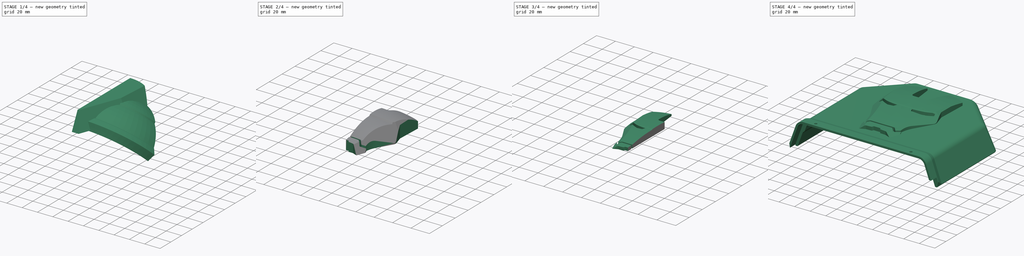
[diagram: build sequence overview — one tinted view per stage of 4, left to right]
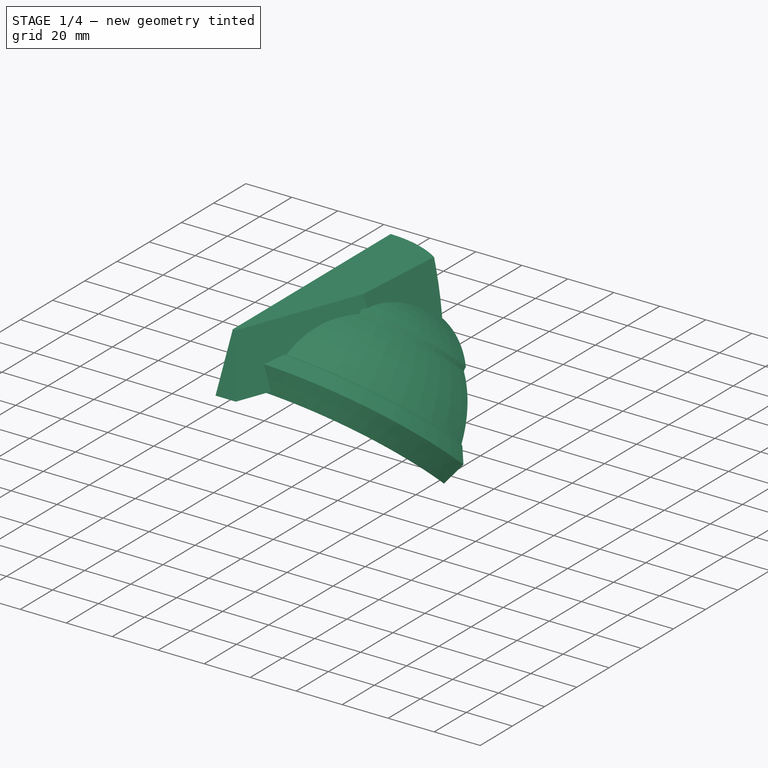
[diagram: stage 1 of 4 — iso view after this stage's code; geometry added in this stage tinted green]
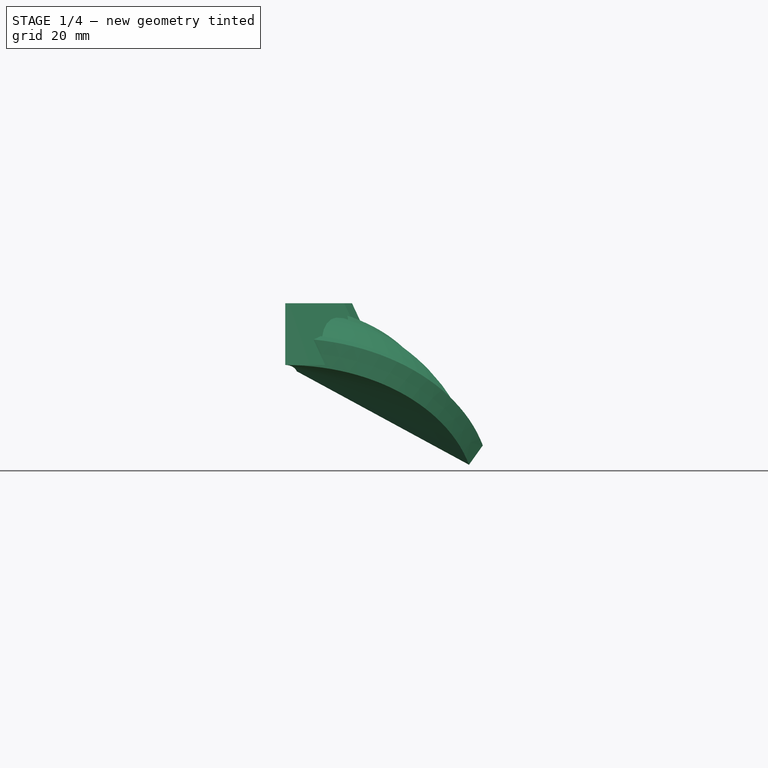
[diagram: stage 1 of 4 — front view after this stage's code; geometry added in this stage tinted green]
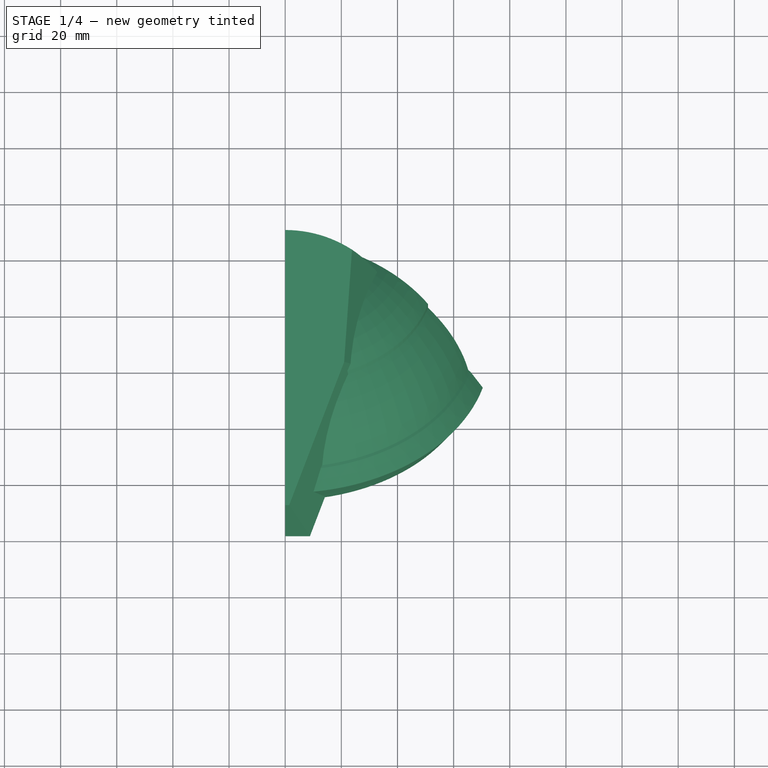
[diagram: stage 1 of 4 — top view after this stage's code; geometry added in this stage tinted green]
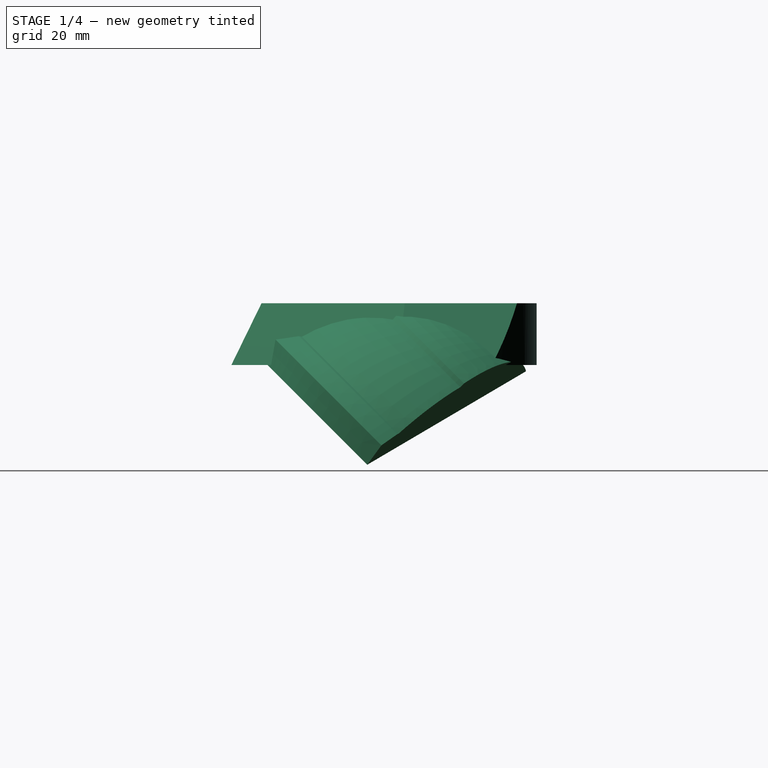
[diagram: stage 1 of 4 — right view after this stage's code; geometry added in this stage tinted green]
FCSTD DOCUMENT  (FreeCAD 0.16RUnknown)
Label: IronMan
License: All rights reserved
LicenseURL: http://en.wikipedia.org/wiki/All_rights_reserved
objects: Sketcher::SketchObject×4, App::DocumentObjectGroup×3, Part::FeaturePython×3, PartDesign::Pad×3, Image::ImagePlane×2, Part::MultiCommon×2, Spreadsheet::Sheet×1, Part::Revolution×1, PartDesign::Draft×1, Part::Cut×1, Part::Mirroring×1, Part::MultiFuse×1
note: 20 computed .brp shape members not serialized (recipe doc carries the construction recipe); baked Part::Feature solids carry a one-line shape summary decoded from their .brp

FEATURE [Image::ImagePlane] ImagePlane001  label="Profile"
  Placement = pos=(0,0,4) rot=(0,-1,0;1.5708rad)
  XSize = 36
  YSize = 100
FEATURE [App::DocumentObjectGroup] Group002  label="Reference"
  Group = -> [ImagePlane,ImagePlane001,UpperFront_step1_01]
FEATURE [Sketcher::SketchObject] Sketch002  label="ProfileSketch"
  Placement = pos=(0,0,0) rot=(0.57735,-0.57735,-0.57735;2.0944rad)
  sketch-geometry (7):
    g0: ArcOfCircle CenterX=-2.97286 CenterY=-28.5793 CenterZ=0 NormalX=0 NormalY=0 NormalZ=1 Radius=50 StartAngle=1.44097 EndAngle=2.53316
    g1: LineSegment StartX=3.5 StartY=21 StartZ=0 EndX=4.8 EndY=19.7 EndZ=0
    g2: ArcOfCircle CenterX=4.22811 CenterY=-37.2971 CenterZ=0 NormalX=0 NormalY=0 NormalZ=1 Radius=57 StartAngle=1.01091 EndAngle=1.56076
    g3: LineSegment StartX=34.5 StartY=11 StartZ=0 EndX=35.5 EndY=11.1228 EndZ=0
    g4: LineSegment StartX=35.5 StartY=11.1228 StartZ=0 EndX=43.5 EndY=9.56774 EndZ=0
    g5: LineSegment StartX=43.5 StartY=9.56774 StartZ=0 EndX=45.8855 EndY=0 EndZ=0
    g6: LineSegment StartX=45.8855 StartY=0 StartZ=0 EndX=-44 EndY=0 EndZ=0
  constraints (23):
    c: Coincident(g3,g4)
    c: Coincident(g4,g5)
    c: Coincident(g5,g6)
    c: Coincident(g0,g6)
    c: Horizontal(g6)
    c: PointOnObject(g0,g-1)
    c: DistanceX(g0) = -44
    c: DistanceX(g0) = 3.5
    c: DistanceY(g0) = 21
    c: Radius(g0) = 50
    c: Coincident(g0,g1)
    c: Angle(g1) = -0.785398
    c: Coincident(g2,g1)
    c: DistanceY(g1,g0) = 1.3
    c: DistanceY(g2) = 11
    c: DistanceX(g2) = 34.5
    c: Coincident(g2,g3)
    c: DistanceX(g2,g3) = 1
    c: Angle(g3) = 0.122173
    c: Angle(g3,g4) = 2.82743
    c: DistanceX(g3,g4) = 8
    c: Angle(g5,g6) = 1.32645
    c: Radius(g2) = 57
FEATURE [Part::Revolution] Revolve  label="ProfileApprox"
  Angle = 75
  Axis = (0,1,1)
  Base = (0,0,-50)
  Solid = true
  Source = -> Sketch002
FEATURE [Sketcher::SketchObject] Sketch003  label="FrontGeometry"
  sketch-geometry (5):
    g0: LineSegment StartX=0 StartY=-48 StartZ=0 EndX=1.42293 EndY=-48 EndZ=0
    g1: LineSegment StartX=1.42293 StartY=-48 StartZ=0 EndX=21 EndY=3 EndZ=0
    g2: LineSegment StartX=21 StartY=3 StartZ=0 EndX=23.7977 EndY=43.009 EndZ=0
    g3: ArcOfCircle CenterX=0 CenterY=6 CenterZ=0 NormalX=0 NormalY=0 NormalZ=1 Radius=44 StartAngle=0.999341 EndAngle=1.5708
    g4: LineSegment StartX=0 StartY=50 StartZ=0 EndX=0 EndY=-48 EndZ=0
  constraints (16):
    c: Coincident(g0,g1)
    c: Coincident(g1,g2)
    c: Coincident(g0,g4)
    c: Coincident(g3,g4)
    c: Vertical(g4)
    c: PointOnObject(g3,g-2)
    c: PointOnObject(g3,g4)
    c: Coincident(g2,g3)
    c: DistanceY(g3) = 50
    c: DistanceY(g0) = -48
    c: Horizontal(g0)
    c: DistanceY(g1) = 3
    c: DistanceX(g1) = 21
    c: Angle(g2,g-1) = 1.64061
    c: Angle(g1) = 1.20428
    c: Radius(g3) = 44
FEATURE [PartDesign::Pad] Pad002  label="FrontGeometry001"
  Length = 22
  Length2 = 100
  Sketch = -> Sketch003
  Type = 0
FEATURE [PartDesign::Draft] Draft  label="FrontGeometryDraft"
  Angle = 26
  Base = -> Pad002 [Face2,Face3,Face1]
  NeutralPlane = -> Pad002 [Face7]
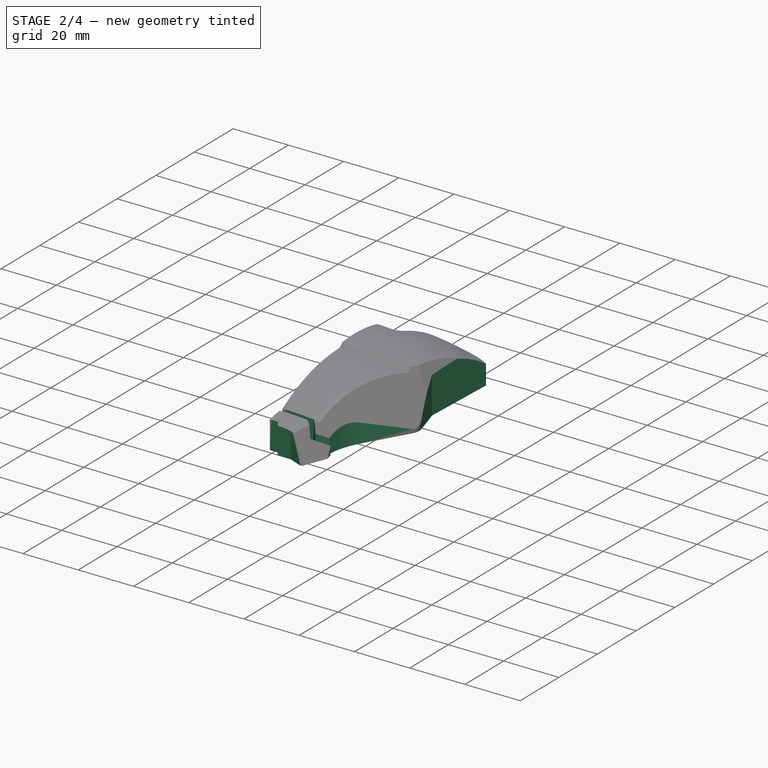
[diagram: stage 2 of 4 — iso view after this stage's code; geometry added in this stage tinted green]
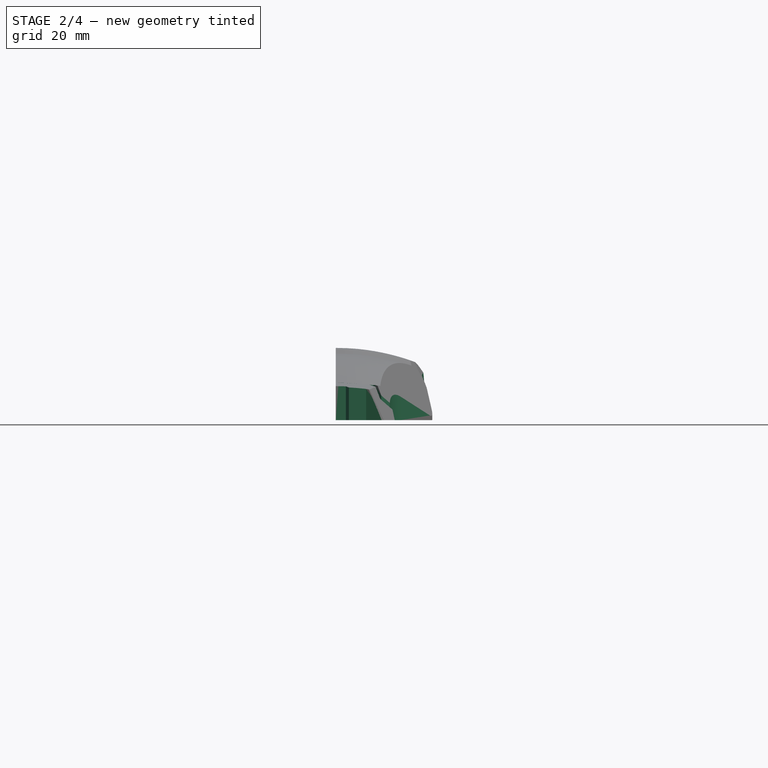
[diagram: stage 2 of 4 — front view after this stage's code; geometry added in this stage tinted green]
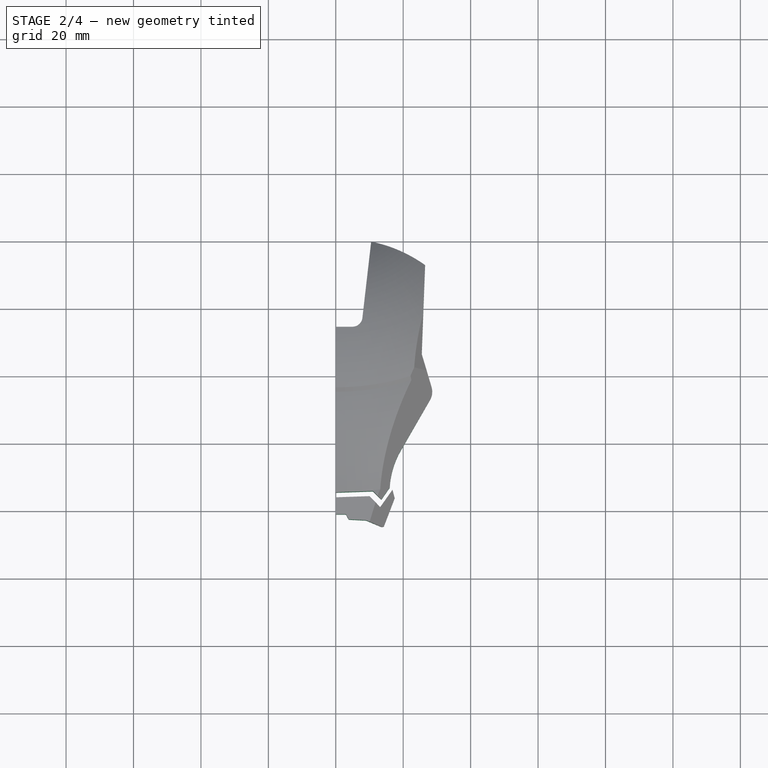
[diagram: stage 2 of 4 — top view after this stage's code; geometry added in this stage tinted green]
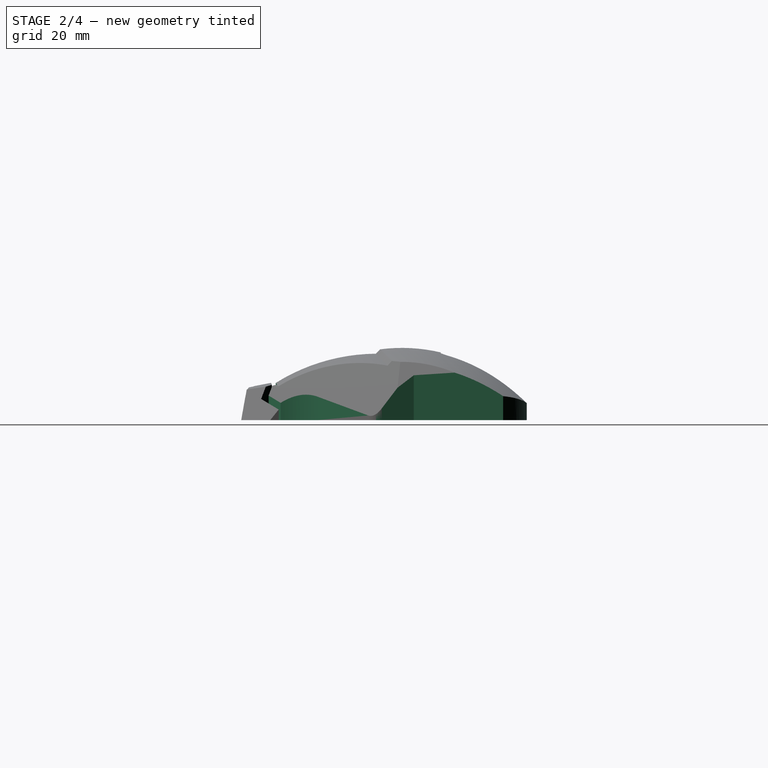
[diagram: stage 2 of 4 — right view after this stage's code; geometry added in this stage tinted green]
FEATURE [PartDesign::Pad] Pad001  label="MaskBorder001"
  Length = 50
  Length2 = 100
  Sketch = -> Sketch
  Type = 0
FEATURE [Part::MultiCommon] Common  label="GeometryCommon"
  Shapes = -> [Revolve,Draft]
FEATURE [Part::MultiCommon] Common001  label="MaskCommon"
  Shapes = -> [Pad001,Common]
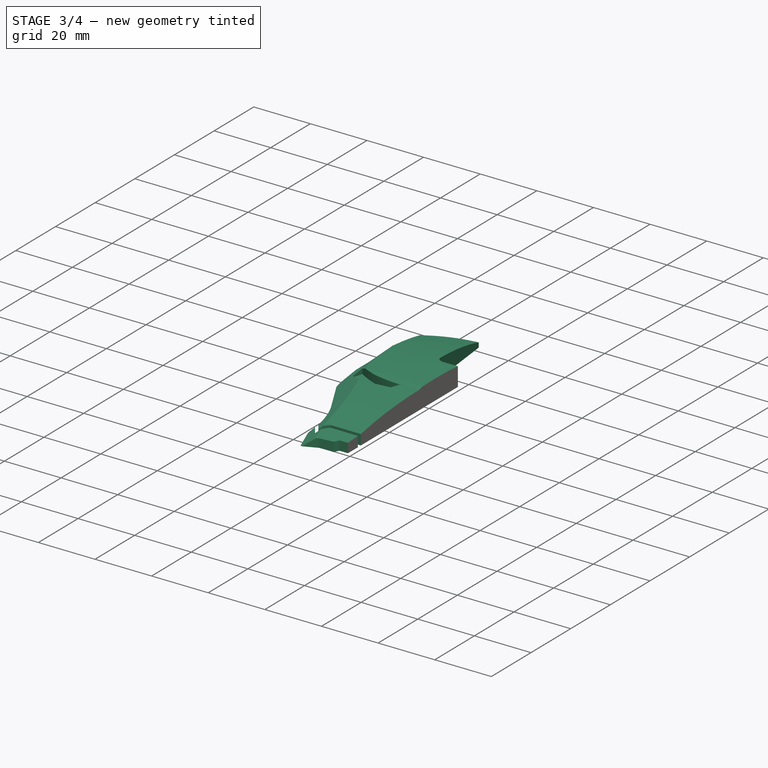
[diagram: stage 3 of 4 — iso view after this stage's code; geometry added in this stage tinted green]
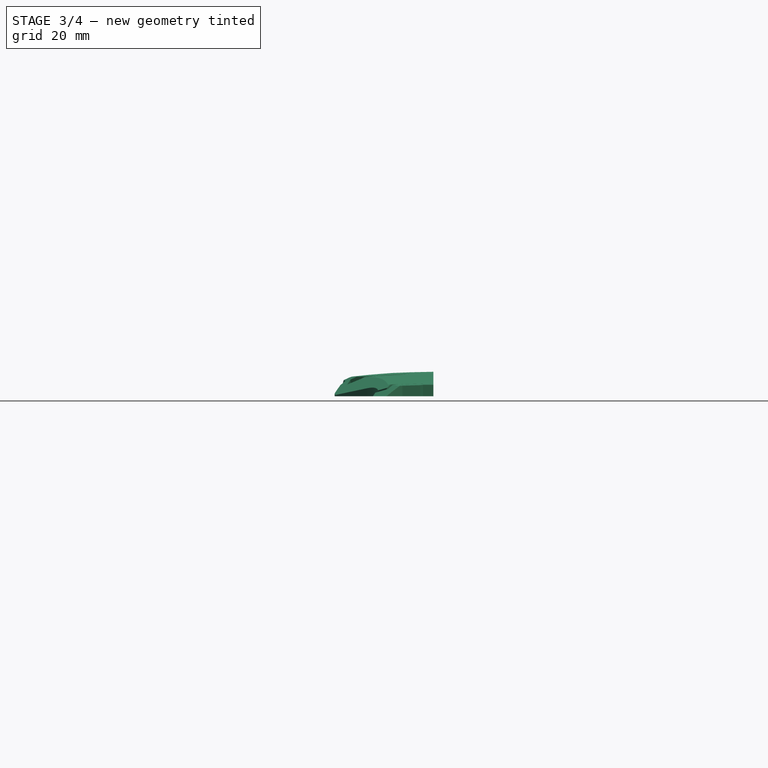
[diagram: stage 3 of 4 — front view after this stage's code; geometry added in this stage tinted green]
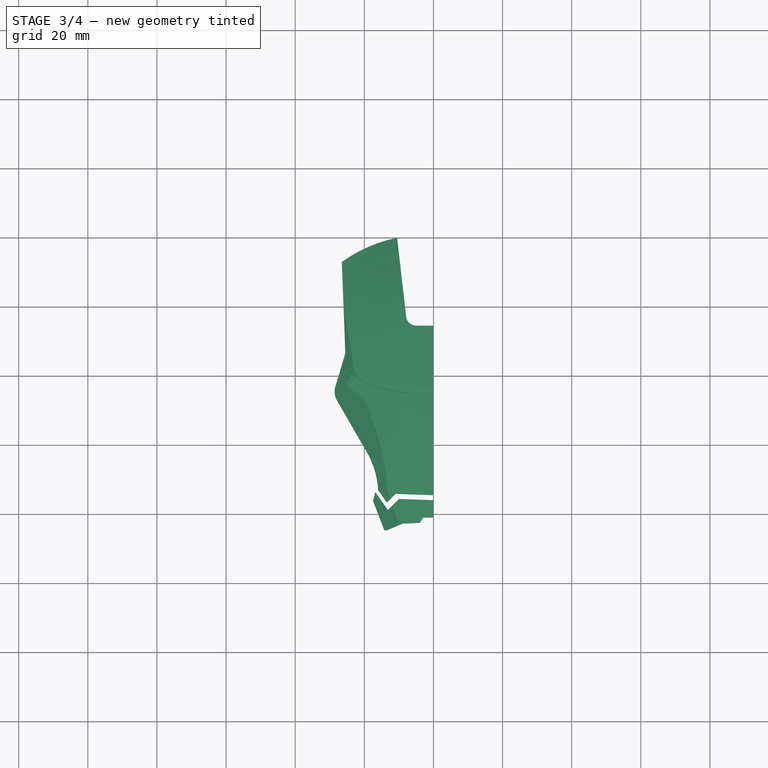
[diagram: stage 3 of 4 — top view after this stage's code; geometry added in this stage tinted green]
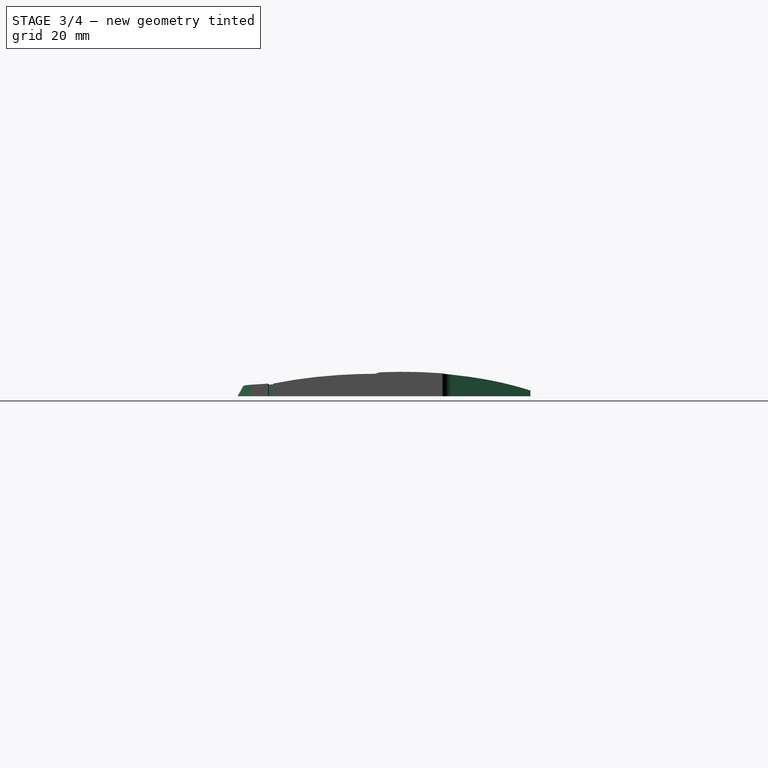
[diagram: stage 3 of 4 — right view after this stage's code; geometry added in this stage tinted green]
FEATURE [Sketcher::SketchObject] Sketch001  label="Eye"
  Placement = pos=(0,0,3) rot=(0,0,1;0rad)
  expr: Placement.Base.z = pars.EBThick
  sketch-geometry (6):
    g0: ArcOfCircle CenterX=3.91904 CenterY=32.8607 CenterZ=0 NormalX=0 NormalY=0 NormalZ=1 Radius=38 StartAngle=4.78828 EndAngle=5.26916
    g1: LineSegment StartX=6.8 StartY=-5.0299 StartZ=0 EndX=8 EndY=-8 EndZ=0
    g2: LineSegment StartX=8 StartY=-8 StartZ=0 EndX=16 EndY=-8 EndZ=0
    g3: LineSegment StartX=24 StartY=0.6 StartZ=0 EndX=24.9485 EndY=-2.7078 EndZ=0
    g4: LineSegment StartX=24.9485 StartY=-2.7078 StartZ=0 EndX=21.353 EndY=-5.94516 EndZ=0
    g5: ArcOfCircle CenterX=16 CenterY=0 CenterZ=0 NormalX=0 NormalY=0 NormalZ=1 Radius=8 StartAngle=4.71239 EndAngle=5.44543
  constraints (20):
    c: Coincident(g1,g2)
    c: Coincident(g3,g4)
    c: Coincident(g0,g1)
    c: Coincident(g0,g3)
    c: Coincident(g4,g5)
    c: Coincident(g2,g5)
    c: Tangent(g2,g5)
    c: Tangent(g5,g4)
    c: Horizontal(g2)
    c: Angle(g4,g2) = 2.40855
    c: DistanceX(g1) = 8
    c: DistanceY(g1) = -8
    c: Radius(g5) = 8
    c: DistanceX(g5) = 16
    c: Angle(g3,g4) = 2.02458
    c: Angle(g2,g1) = 1.95477
    c: DistanceX(g0) = 6.8
    c: DistanceX(g0) = 24
    c: DistanceY(g0) = 0.6
    c: Radius(g0) = 38
FEATURE [PartDesign::Pad] Pad  label="Eye001"
  Length = 25
  Length2 = 100
  Placement = pos=(0,0,3) rot=(0,0,1;0rad)
  Sketch = -> Sketch001
  Type = 0
FEATURE [Part::FeaturePython] Clone  label="Rescale"  # Draft clone (typed FeaturePython)
  Objects = -> [Common001]
  Scale = (1,1,0.33)
FEATURE [Part::Cut] Cut  label="HalfFace"
  Base = -> Clone
  Tool = -> Pad
FEATURE [Part::Mirroring] Part__Mirroring  label="HalfFace (Mirror #1)"
  Base = (0,0,0)
  Normal = (1,0,0)
  Source = -> Cut
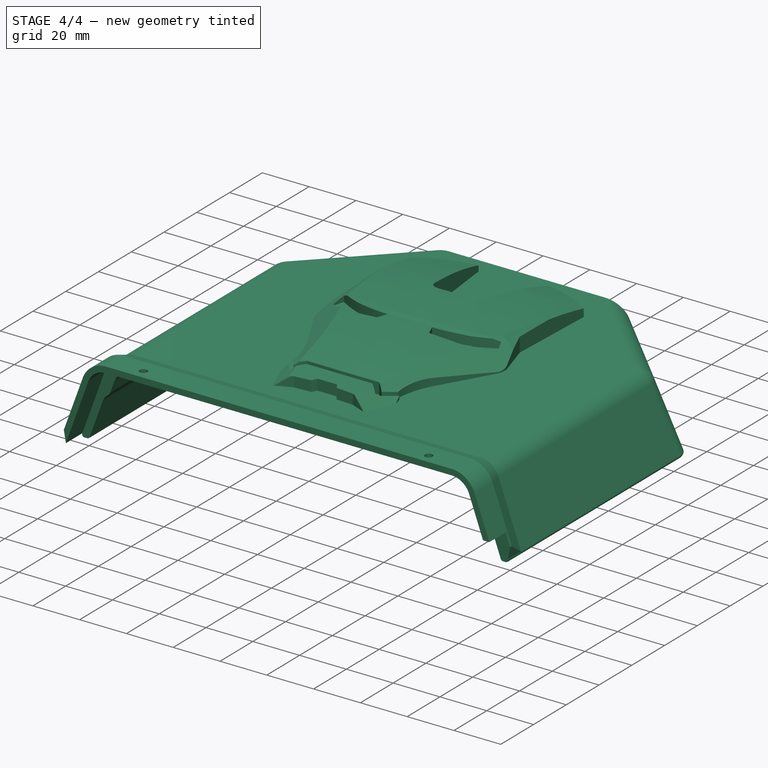
[diagram: stage 4 of 4 — iso view after this stage's code; geometry added in this stage tinted green]
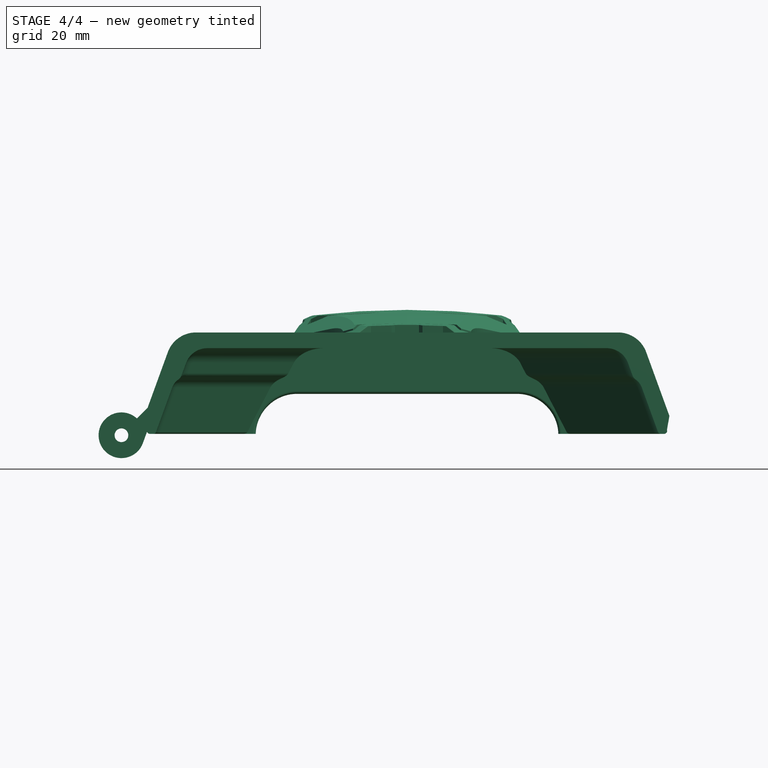
[diagram: stage 4 of 4 — front view after this stage's code; geometry added in this stage tinted green]
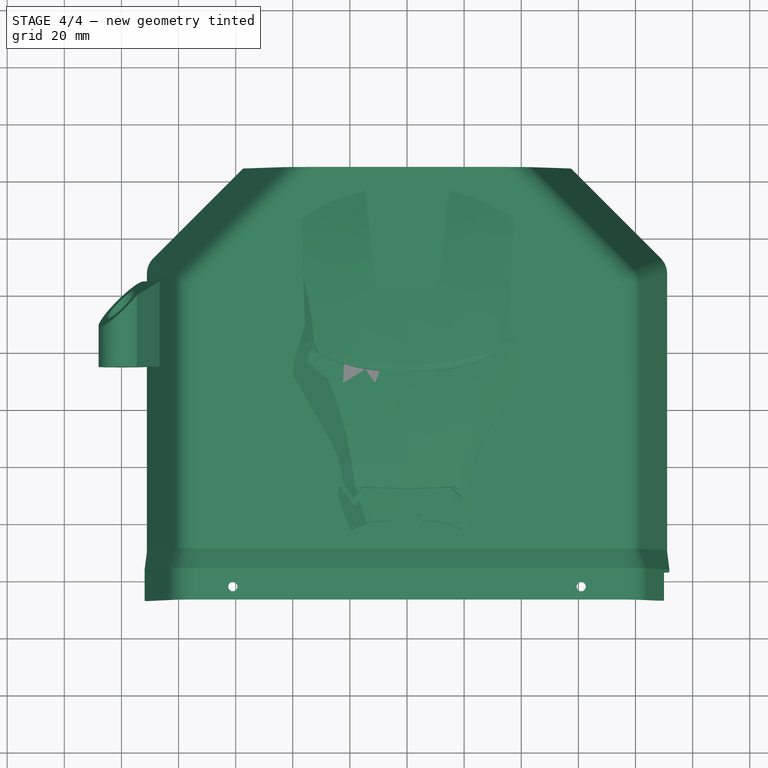
[diagram: stage 4 of 4 — top view after this stage's code; geometry added in this stage tinted green]
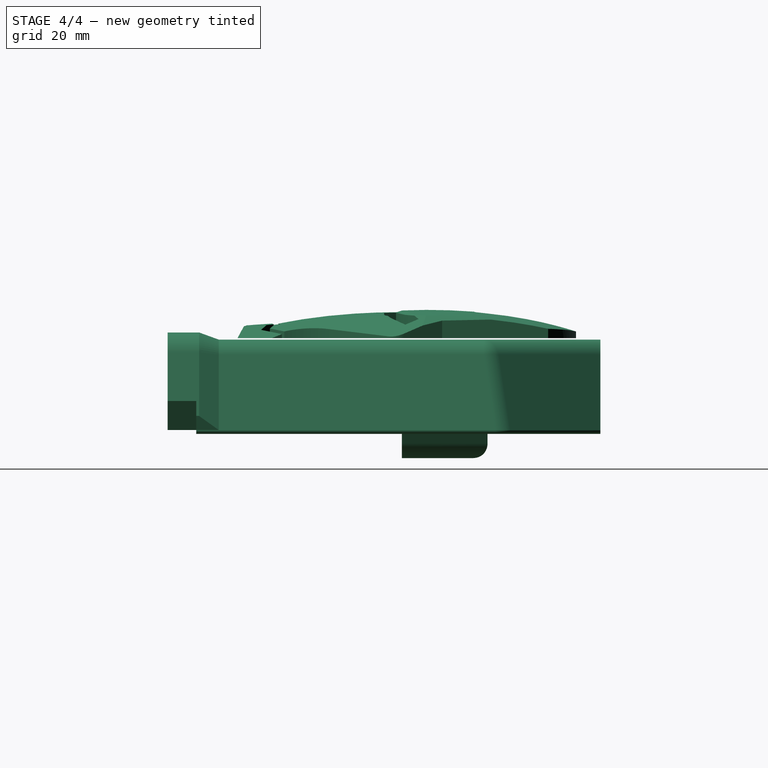
[diagram: stage 4 of 4 — right view after this stage's code; geometry added in this stage tinted green]
FEATURE [Spreadsheet::Sheet] Spreadsheet  label="pars"
  cells = A1=Bolts and Nuts; B1=Value; D1=Components; E1=Value; A2=Thread Tight Tolerance (Radius, ratio); B2(ThrTighRatio)=0.96; D2=Tight Cilinder Tolerances (Radius, mm); E2(CilTight)=0.1; A3=Thread Tight Tolerance (Radius, mm); B3(ThrTightmm)=0.1; D3=Loose Cilinder Tolerances (Radius, mm); E3(CilLoose)=0.1; A5=Nut Slot Width Clearance (mm); B5(NutWidthClearmm)=0.1; A6=Nut Slot Thickess Clearance (mm); B6(NutThickClearmm)=0.1; A13=Particular parameters; B13=Value; A14=Eye Bottom Thickness; B14(EBThick)=3; A15=Scale; B15(Scale)=1.4
FEATURE [App::DocumentObjectGroup] Group001  label="Component_src"
FEATURE [Image::ImagePlane] ImagePlane  label="Front"
  XSize = 60
  YSize = 100
FEATURE [Sketcher::SketchObject] Sketch  label="MaskBorder"
  sketch-geometry (24):
    g0: LineSegment StartX=0 StartY=14.5 StartZ=0 EndX=4.91704 EndY=14.5 EndZ=0
    g1: LineSegment StartX=7.89776 StartY=17.1604 StartZ=0 EndX=10.5 EndY=40 EndZ=0
    g2: LineSegment StartX=26.5 StartY=33 StartZ=0 EndX=25.5 EndY=6.5 EndZ=0
    g3: LineSegment StartX=25.5 StartY=6.5 StartZ=0 EndX=28.3909 EndY=-3.05159 EndZ=0
    g4: LineSegment StartX=27.9354 StartY=-7 StartZ=0 EndX=19.3076 EndY=-21.9437 EndZ=0
    g5: LineSegment StartX=0 StartY=-35.9545 StartZ=0 EndX=10 EndY=-35.6053 EndZ=0
    g6: LineSegment StartX=10 StartY=-35.6053 StartZ=0 EndX=13.174 EndY=-38.7793 EndZ=0
    g7: LineSegment StartX=13.174 StartY=-38.7793 StartZ=0 EndX=16.8192 EndY=-33.5736 EndZ=0
    g8: LineSegment StartX=16.8192 StartY=-33.5736 StartZ=0 EndX=18.3078 EndY=-39.1293 EndZ=0
    g9: LineSegment StartX=18.3078 StartY=-39.1293 StartZ=0 EndX=14 EndY=-44.8459 EndZ=0
    g10: LineSegment StartX=14 StartY=-44.8459 StartZ=0 EndX=9 EndY=-42.7236 EndZ=0
    g11: LineSegment StartX=9 StartY=-42.7236 StartZ=0 EndX=3.86603 EndY=-42.4545 EndZ=0
    g12: LineSegment StartX=3.86603 StartY=-42.4545 StartZ=0 EndX=3 EndY=-40.9545 EndZ=0
    g13: LineSegment StartX=3 StartY=-40.9545 StartZ=0 EndX=0 EndY=-40.9545 EndZ=0
    g14: LineSegment StartX=0 StartY=-40.9545 StartZ=0 EndX=0 EndY=-35.9545 EndZ=0
    g15: LineSegment StartX=0 StartY=-34.4545 StartZ=0 EndX=11 EndY=-34.0704 EndZ=0
    g16: LineSegment StartX=11 StartY=-34.0704 StartZ=0 EndX=13.5 EndY=-36.5704 EndZ=0
    g17: LineSegment StartX=13.5 StartY=-36.5704 StartZ=0 EndX=16 EndY=-33 EndZ=0
    g18: ArcOfCircle CenterX=40.9583 CenterY=-34.4437 CenterZ=0 NormalX=0 NormalY=0 NormalZ=1 Radius=25 StartAngle=2.61799 EndAngle=3.08381
    g19: LineSegment StartX=0 StartY=14.5 StartZ=0 EndX=0 EndY=-34.4545 EndZ=0
    g20: ArcOfCircle CenterX=2.03347 CenterY=-1.13779 CenterZ=0 NormalX=0 NormalY=0 NormalZ=1 Radius=42 StartAngle=0.94895 EndAngle=1.36782
    g21: ArcOfCircle CenterX=4.91704 CenterY=17.5 CenterZ=0 NormalX=0 NormalY=0 NormalZ=1 Radius=3 StartAngle=4.71239 EndAngle=6.16974
    g22: ArcOfCircle CenterX=23.6053 CenterY=-4.5 CenterZ=0 NormalX=0 NormalY=0 NormalZ=1 Radius=5 StartAngle=5.75959 EndAngle=6.57708
    g23: LineSegment [constr] StartX=16 StartY=-33 StartZ=0 EndX=16.8192 EndY=-33.5736 EndZ=0
  constraints (71):
    c: Coincident(g2,g3)
    c: Coincident(g5,g6)
    c: Coincident(g6,g7)
    c: Coincident(g7,g8)
    c: Coincident(g8,g9)
    c: Coincident(g9,g10)
    c: Coincident(g10,g11)
    c: Coincident(g11,g12)
    c: Coincident(g12,g13)
    c: Coincident(g13,g14)
    c: Coincident(g14,g5)
    c: Coincident(g15,g16)
    c: Coincident(g16,g17)
    c: Coincident(g4,g18)
    c: Coincident(g17,g18)
    c: Coincident(g15,g19)
    c: Coincident(g0,g19)
    c: PointOnObject(g0,g-2)
    c: Vertical(g19)
    c: Vertical(g14)
    c: PointOnObject(g5,g19)
    c: DistanceY(g14,g14) = 5
    c: DistanceY(g5,g15) = 1.5
    c: Horizontal(g13)
    c: DistanceX(g13,g13) = 3
    c: DistanceY(g0) = 14.5
    c: Coincident(g1,g20)
    c: Coincident(g2,g20)
    c: DistanceY(g1) = 40
    c: DistanceX(g1) = 10.5
    c: Horizontal(g0)
    c: Tangent(g0,g21) = -1.5708
    c: Tangent(g1,g21) = -1.5708
    c: Radius(g21) = 3
    c: Angle(g1) = 1.45735
    c: DistanceX(g2) = 26.5
    c: DistanceY(g2) = 33
    c: Radius(g20) = 42
    c: Tangent(g3,g22) = 1.5708
    c: Tangent(g4,g22) = 1.5708
    c: DistanceX(g2) = 25.5
    c: DistanceY(g2) = 6.5
    c: Radius(g22) = 5
    c: Angle(g3,g2) = 2.80998
    c: Tangent(g18,g4)
    c: DistanceY(g22) = -4.5
    c: Angle(g4) = -2.0944
    c: DistanceX(g17) = 16
    c: DistanceX(g15) = 11
    c: DistanceX(g16) = 13.5
    c: DistanceY(g17) = -33
    c: Parallel(g7,g17)
    c: Parallel(g16,g6)
    c: Parallel(g5,g15)
    c: Angle(g15,g19) = 1.53589
    c: Angle(g15,g16) = 2.32129
    c: Angle(g17,g16) = 1.39626
    c: Coincident(g17,g23)
    c: Perpendicular(g7,g23)
    c: Distance(g23) = 1
    c: DistanceX(g5) = 10
    c: Angle(g7,g8) = 0.872665
    c: Coincident(g23,g7)
    c: Angle(g13,g12) = 2.0944
    c: Angle(g11,g12) = 2.14675
    c: Angle(g11,g10) = 2.79253
    c: DistanceX(g10) = 9
    c: DistanceX(g9) = 14
    c: DistanceY(g11,g12) = 1.5
    c: Angle(g8,g9) = 2.23402
    c: Radius(g18) = 25
FEATURE [Part::FeaturePython] UpperFront_step1_01  label="UpperFront"  # a2plus imported part (geometry in sourceFile) (typed FeaturePython)
  Placement = pos=(0,-77,-34) rot=(0,0.707107,-0.707107;3.14159rad)
  fixedPosition = true
  sourceFile = ./../Step/UpperFront.step
  timeLastImport = 1526457177
  updateColors = true
FEATURE [Part::MultiFuse] Fusion  label="XMirror"
  Shapes = -> [Cut,Part__Mirroring]
FEATURE [App::DocumentObjectGroup] Group  label="src"
  Group = -> [Pad002,Common001,Fusion]
FEATURE [Part::FeaturePython] Clone001  label="IronMan"  # Draft clone (typed FeaturePython)
  Objects = -> [Fusion]
  Scale = (1.4,1.4,1.4)
  expr: Scale.z = pars.Scale
  expr: Scale.y = pars.Scale
  expr: Scale.x = pars.Scale
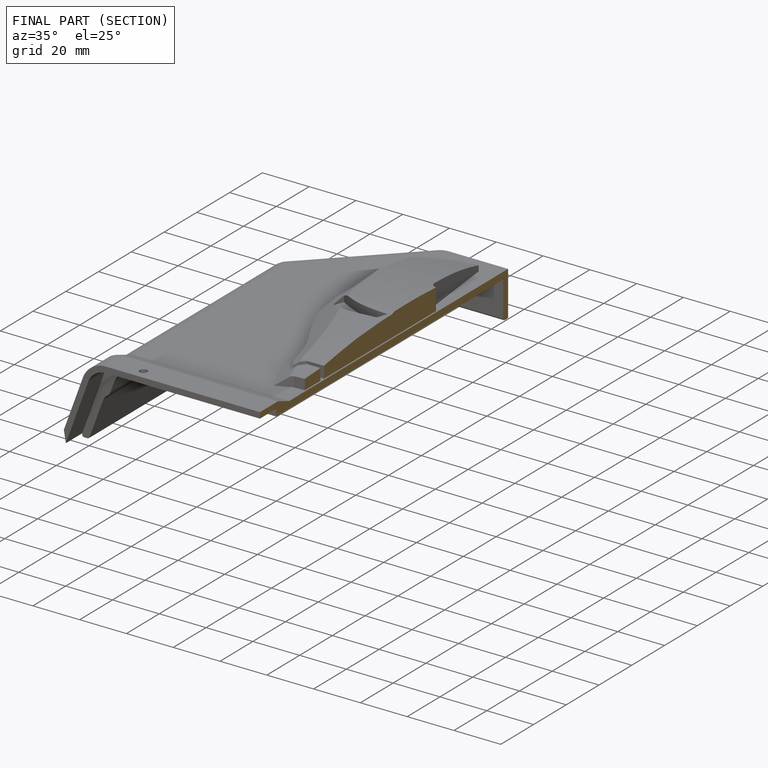
[diagram: finished part — half-section view (interior)]
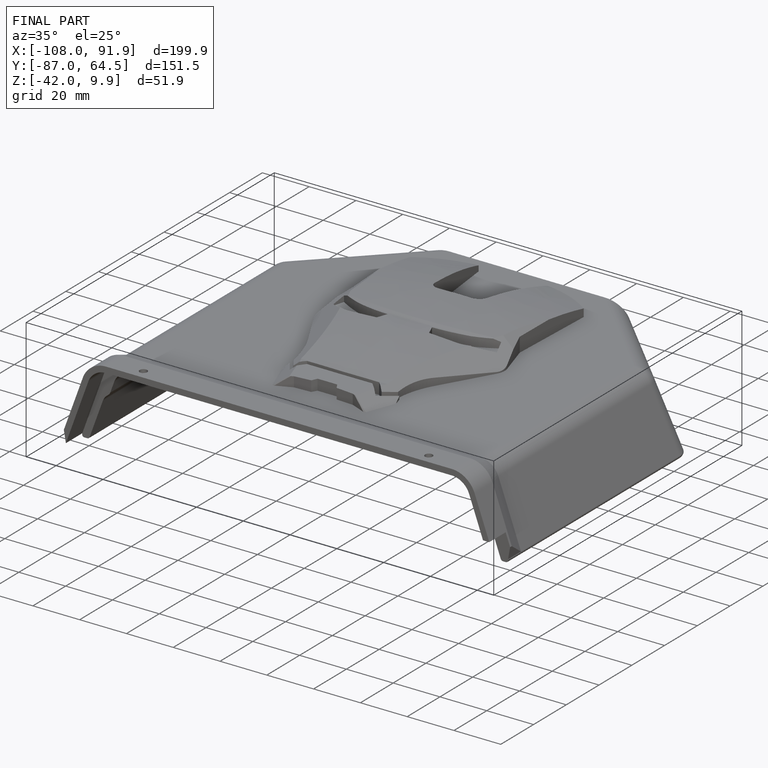
[diagram: finished part — iso view with bounding-box wireframe]
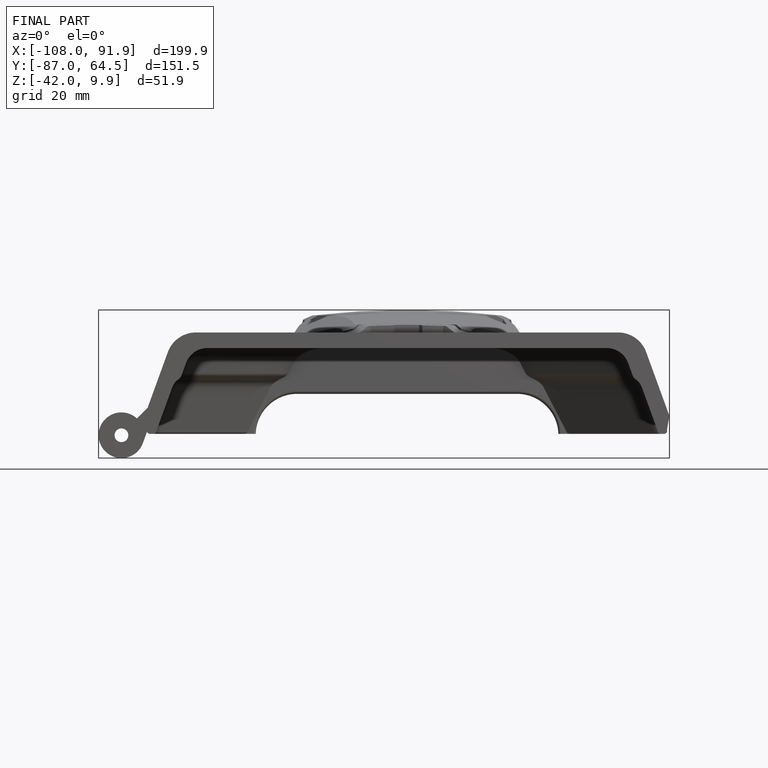
[diagram: finished part — front view with bounding-box wireframe]
